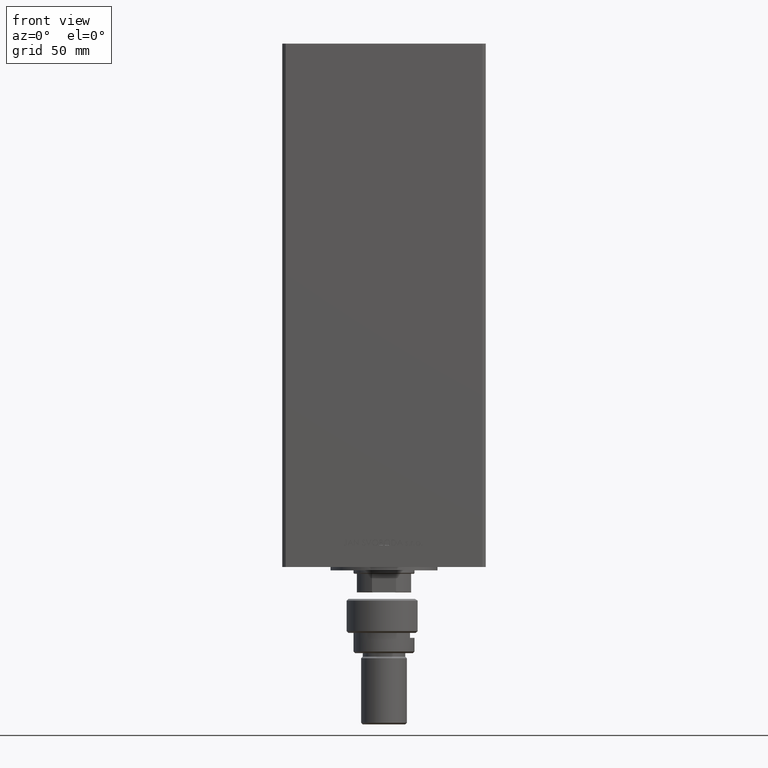
[diagram: clean part render]
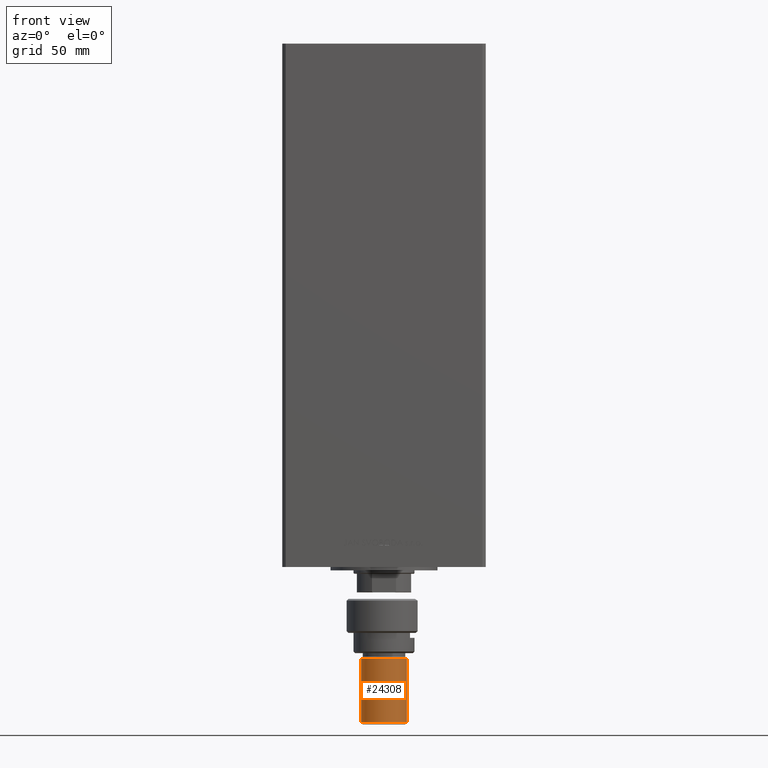
[diagram: same view with one face highlighted and labeled with its STEP entity id]
A machine part, front view. The second image highlights one B-rep face of the part: STEP entity #24308.
In plain terms, the highlighted cylindrical surface (edge-blend (fillet) strip) has radius 13.5 mm, axis along (0, -0, 1).
Its self-contained STEP definition (entity closure, byte-faithful):
#97 = CARTESIAN_POINT ( 'NONE',  ( 13.50000000000000000, 1.653273178848926867E-15, 34.99999999999999289 ) ) ;
#112 = DIRECTION ( 'NONE',  ( -0.000000000000000000, -0.000000000000000000, -1.000000000000000000 ) ) ;
#1453 = EDGE_CURVE ( 'NONE', #31812, #35949, #25993, .T. ) ;
#1959 = AXIS2_PLACEMENT_3D ( 'NONE', #27817, #112, #23997 ) ;
#3221 = ORIENTED_EDGE ( 'NONE', *, *, #1453, .T. ) ;
#3270 = DIRECTION ( 'NONE',  ( -0.000000000000000000, -0.000000000000000000, -1.000000000000000000 ) ) ;
#3301 = EDGE_LOOP ( 'NONE', ( #49204, #3221, #19202, #4449 ) ) ;
#4036 = VERTEX_POINT ( 'NONE', #39440 ) ;
#4449 = ORIENTED_EDGE ( 'NONE', *, *, #14598, .T. ) ;
#7484 = CARTESIAN_POINT ( 'NONE',  ( 0.000000000000000000, 0.000000000000000000, 34.99999999999999289 ) ) ;
#7996 = LINE ( 'NONE', #35433, #41040 ) ;
#8497 = FACE_OUTER_BOUND ( 'NONE', #3301, .T. ) ;
#11741 = EDGE_CURVE ( 'NONE', #35949, #4036, #48824, .T. ) ;
#13964 = CARTESIAN_POINT ( 'NONE',  ( -13.50000000000000000, 0.000000000000000000, 74.00000000000001421 ) ) ;
#14598 = EDGE_CURVE ( 'NONE', #4036, #15741, #34062, .T. ) ;
#15741 = VERTEX_POINT ( 'NONE', #97 ) ;
#16974 = DIRECTION ( 'NONE',  ( 1.000000000000000000, 0.000000000000000000, 0.000000000000000000 ) ) ;
#18163 = DIRECTION ( 'NONE',  ( 1.000000000000000000, 0.000000000000000000, 0.000000000000000000 ) ) ;
#19202 = ORIENTED_EDGE ( 'NONE', *, *, #11741, .T. ) ;
#21606 = CARTESIAN_POINT ( 'NONE',  ( -13.50000000000000000, 0.000000000000000000, 73.00000000000001421 ) ) ;
#21873 = AXIS2_PLACEMENT_3D ( 'NONE', #7484, #41296, #18163 ) ;
#23997 = DIRECTION ( 'NONE',  ( -1.000000000000000000, 0.000000000000000000, 0.000000000000000000 ) ) ;
#24308 = ADVANCED_FACE ( 'NONE', ( #8497 ), #38764, .T. ) ;
#25993 = CIRCLE ( 'NONE', #33292, 13.50000000000000000 ) ;
#27817 = CARTESIAN_POINT ( 'NONE',  ( 0.000000000000000000, 0.000000000000000000, 74.00000000000001421 ) ) ;
#29425 = CARTESIAN_POINT ( 'NONE',  ( 0.000000000000000000, 0.000000000000000000, 73.00000000000001421 ) ) ;
#30005 = VECTOR ( 'NONE', #3270, 1000.000000000000000 ) ;
#31812 = VERTEX_POINT ( 'NONE', #43782 ) ;
#32670 = EDGE_CURVE ( 'NONE', #31812, #15741, #7996, .T. ) ;
#33292 = AXIS2_PLACEMENT_3D ( 'NONE', #29425, #40633, #16974 ) ;
#34062 = CIRCLE ( 'NONE', #21873, 13.50000000000000000 ) ;
#35433 = CARTESIAN_POINT ( 'NONE',  ( 13.50000000000000000, 1.653273178848926867E-15, 74.00000000000001421 ) ) ;
#35949 = VERTEX_POINT ( 'NONE', #21606 ) ;
#38764 = CYLINDRICAL_SURFACE ( 'NONE', #1959, 13.50000000000000000 ) ;
#39440 = CARTESIAN_POINT ( 'NONE',  ( -13.50000000000000000, 0.000000000000000000, 34.99999999999999289 ) ) ;
#40633 = DIRECTION ( 'NONE',  ( 0.000000000000000000, 0.000000000000000000, -1.000000000000000000 ) ) ;
#41040 = VECTOR ( 'NONE', #50235, 1000.000000000000000 ) ;
#41296 = DIRECTION ( 'NONE',  ( -0.000000000000000000, -0.000000000000000000, 1.000000000000000000 ) ) ;
#43782 = CARTESIAN_POINT ( 'NONE',  ( 13.50000000000000000, 1.653273178848926867E-15, 73.00000000000001421 ) ) ;
#48824 = LINE ( 'NONE', #13964, #30005 ) ;
#49204 = ORIENTED_EDGE ( 'NONE', *, *, #32670, .F. ) ;
#50235 = DIRECTION ( 'NONE',  ( -0.000000000000000000, -0.000000000000000000, -1.000000000000000000 ) ) ;